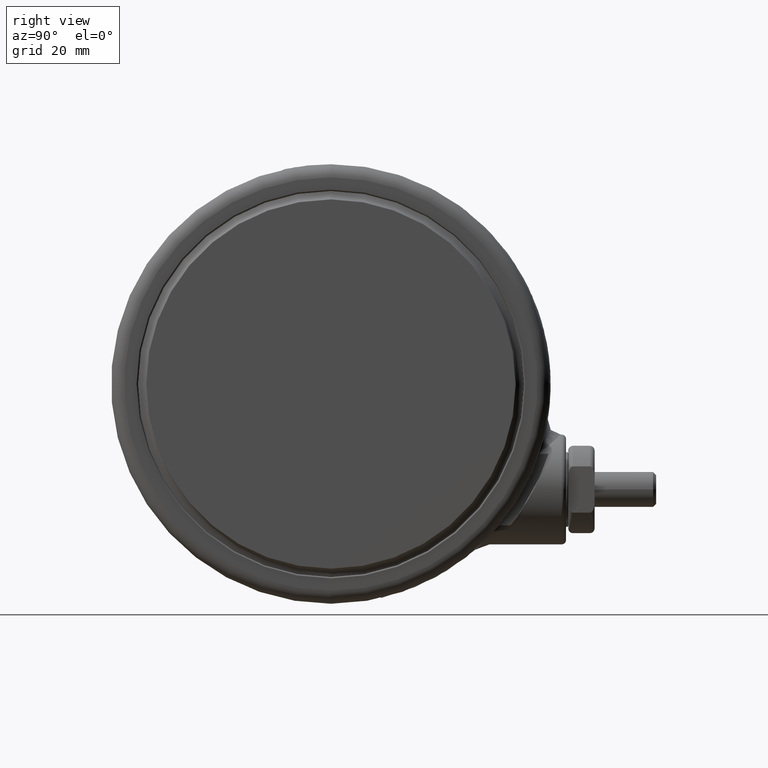
[diagram: clean part render]
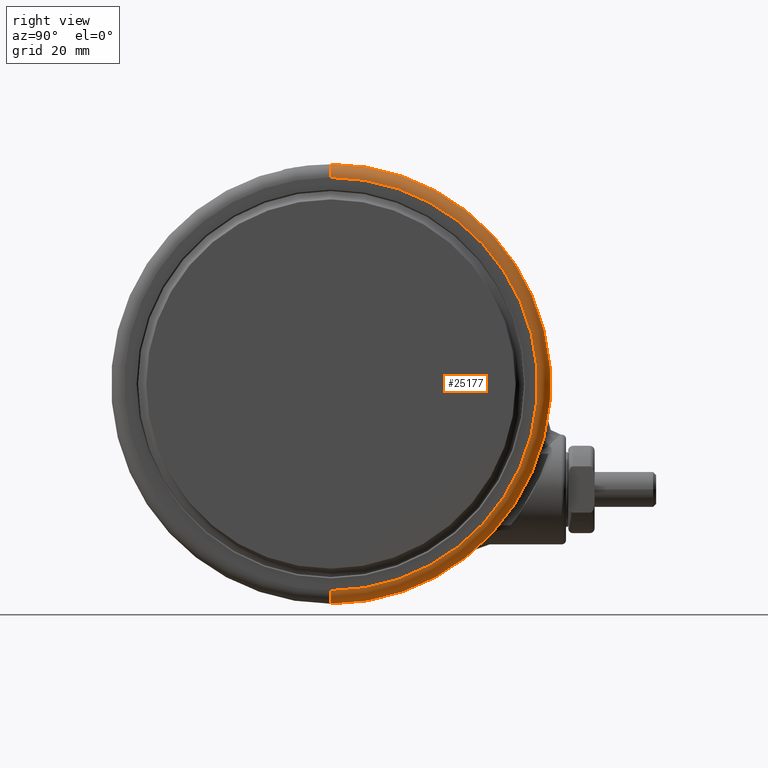
[diagram: same view with one face highlighted and labeled with its STEP entity id]
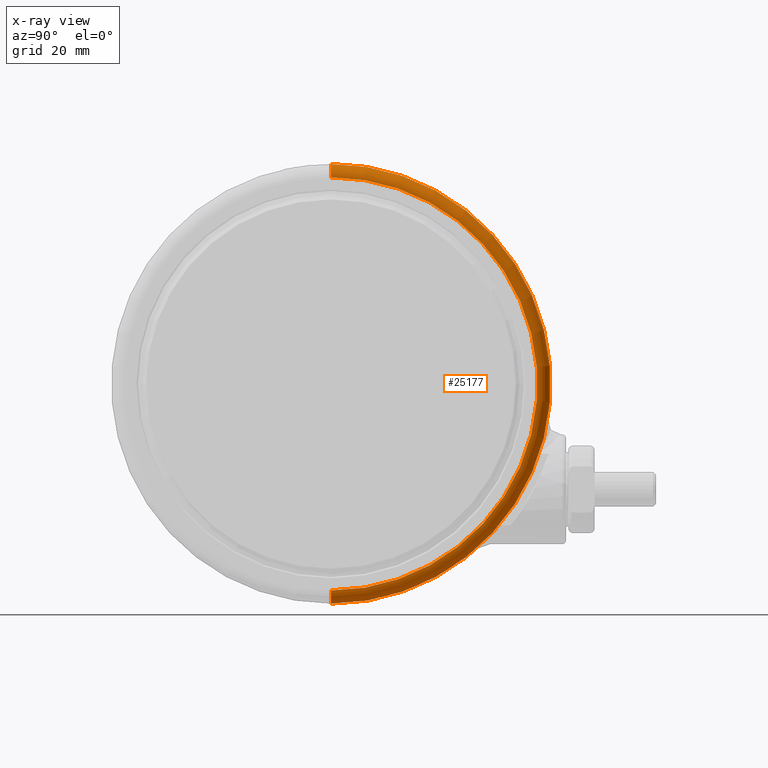
[diagram: x-ray of the same camera — body ghosted, the highlighted face saturated]
A machine part, right view. The second image highlights one B-rep face of the part: STEP entity #25177.
The next image is the same camera in x-ray: the body ghosted, the highlighted face saturated — about 0% of this face is hidden behind the body in this view.
In plain terms, the highlighted toroidal blend (fillet) surface has major radius 47 mm and minor (blend) radius 3 mm.
Its self-contained STEP definition (entity closure, byte-faithful):
#943 = EDGE_CURVE ( 'NONE', #16130, #24448, #16758, .T. ) ;
#1752 = CARTESIAN_POINT ( 'NONE',  ( 1.387778780781445700E-014, -1.734723475976807100E-015, -2.099999999999990800 ) ) ;
#2164 = CIRCLE ( 'NONE', #13955, 3.000000000000002700 ) ;
#4267 = DIRECTION ( 'NONE',  ( -1.000000000000000000, 0.0000000000000000000, 0.0000000000000000000 ) ) ;
#4384 = CARTESIAN_POINT ( 'NONE',  ( -49.99999999999998600, -1.734723475976807100E-015, -5.099999999999880600 ) ) ;
#5545 = DIRECTION ( 'NONE',  ( 0.0000000000000000000, 0.0000000000000000000, -1.000000000000000000 ) ) ;
#7782 = EDGE_LOOP ( 'NONE', ( #28700, #29277, #15237, #24285 ) ) ;
#10418 = VERTEX_POINT ( 'NONE', #13953 ) ;
#11944 = CARTESIAN_POINT ( 'NONE',  ( 47.00000000000001400, 4.021116480015753500E-015, -5.099999999999880600 ) ) ;
#12194 = DIRECTION ( 'NONE',  ( -1.000000000000000000, 0.0000000000000000000, 0.0000000000000000000 ) ) ;
#12253 = DIRECTION ( 'NONE',  ( -0.0000000000000000000, -1.000000000000000000, -0.0000000000000000000 ) ) ;
#13953 = CARTESIAN_POINT ( 'NONE',  ( 47.00000000000001400, 4.204813499887857100E-015, -2.099999999999990800 ) ) ;
#13955 = AXIS2_PLACEMENT_3D ( 'NONE', #11944, #29431, #14441 ) ;
#14441 = DIRECTION ( 'NONE',  ( -1.000000000000000000, -1.224646799147352000E-016, 0.0000000000000000000 ) ) ;
#14526 = TOROIDAL_SURFACE ( 'NONE', #24161, 47.00000000000000000, 3.000000000000000000 ) ;
#15237 = ORIENTED_EDGE ( 'NONE', *, *, #943, .F. ) ;
#15294 = EDGE_CURVE ( 'NONE', #10418, #24448, #2164, .T. ) ;
#16130 = VERTEX_POINT ( 'NONE', #4384 ) ;
#16758 = CIRCLE ( 'NONE', #30419, 50.00000000000000000 ) ;
#17115 = DIRECTION ( 'NONE',  ( 0.0000000000000000000, 0.0000000000000000000, -1.000000000000000000 ) ) ;
#17380 = CARTESIAN_POINT ( 'NONE',  ( -46.99999999999998600, -1.734723475976807100E-015, -2.099999999999990800 ) ) ;
#17410 = AXIS2_PLACEMENT_3D ( 'NONE', #27206, #12253, #29754 ) ;
#17543 = EDGE_CURVE ( 'NONE', #10418, #30991, #22362, .T. ) ;
#17984 = CIRCLE ( 'NONE', #17410, 3.000000000000000900 ) ;
#18892 = EDGE_CURVE ( 'NONE', #30991, #16130, #17984, .T. ) ;
#19226 = DIRECTION ( 'NONE',  ( -0.0000000000000000000, -0.0000000000000000000, 1.000000000000000000 ) ) ;
#20529 = CARTESIAN_POINT ( 'NONE',  ( 1.387778780781445700E-014, -1.734723475976807100E-015, -5.099999999999880600 ) ) ;
#22362 = CIRCLE ( 'NONE', #28464, 47.00000000000000000 ) ;
#23051 = DIRECTION ( 'NONE',  ( -1.000000000000000000, 0.0000000000000000000, 0.0000000000000000000 ) ) ;
#24161 = AXIS2_PLACEMENT_3D ( 'NONE', #32082, #17115, #12194 ) ;
#24285 = ORIENTED_EDGE ( 'NONE', *, *, #18892, .F. ) ;
#24448 = VERTEX_POINT ( 'NONE', #26238 ) ;
#25177 = ADVANCED_FACE ( 'NONE', ( #27836 ), #14526, .T. ) ;
#26238 = CARTESIAN_POINT ( 'NONE',  ( 50.00000000000001400, 4.388510519759959000E-015, -5.099999999999880600 ) ) ;
#27206 = CARTESIAN_POINT ( 'NONE',  ( -46.99999999999998600, -1.734723475976807100E-015, -5.099999999999880600 ) ) ;
#27836 = FACE_OUTER_BOUND ( 'NONE', #7782, .T. ) ;
#28464 = AXIS2_PLACEMENT_3D ( 'NONE', #1752, #19226, #4267 ) ;
#28700 = ORIENTED_EDGE ( 'NONE', *, *, #17543, .F. ) ;
#29277 = ORIENTED_EDGE ( 'NONE', *, *, #15294, .T. ) ;
#29431 = DIRECTION ( 'NONE',  ( -1.224646799147353200E-016, 1.000000000000000000, 0.0000000000000000000 ) ) ;
#29754 = DIRECTION ( 'NONE',  ( 0.0000000000000000000, 0.0000000000000000000, -1.000000000000000000 ) ) ;
#30419 = AXIS2_PLACEMENT_3D ( 'NONE', #20529, #5545, #23051 ) ;
#30991 = VERTEX_POINT ( 'NONE', #17380 ) ;
#32082 = CARTESIAN_POINT ( 'NONE',  ( 1.387778780781445700E-014, -1.734723475976807100E-015, -5.099999999999880600 ) ) ;